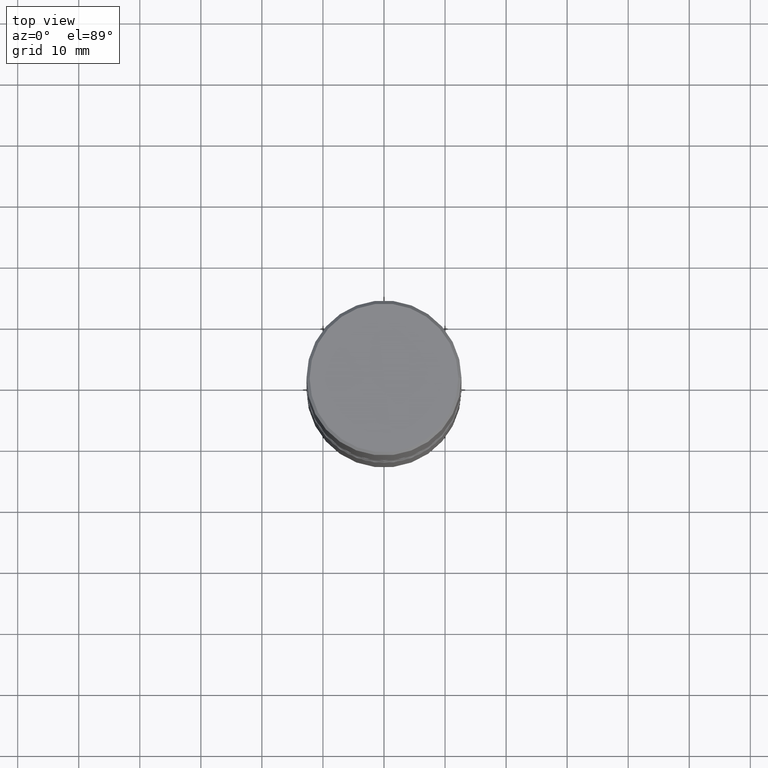
[diagram: clean part render]
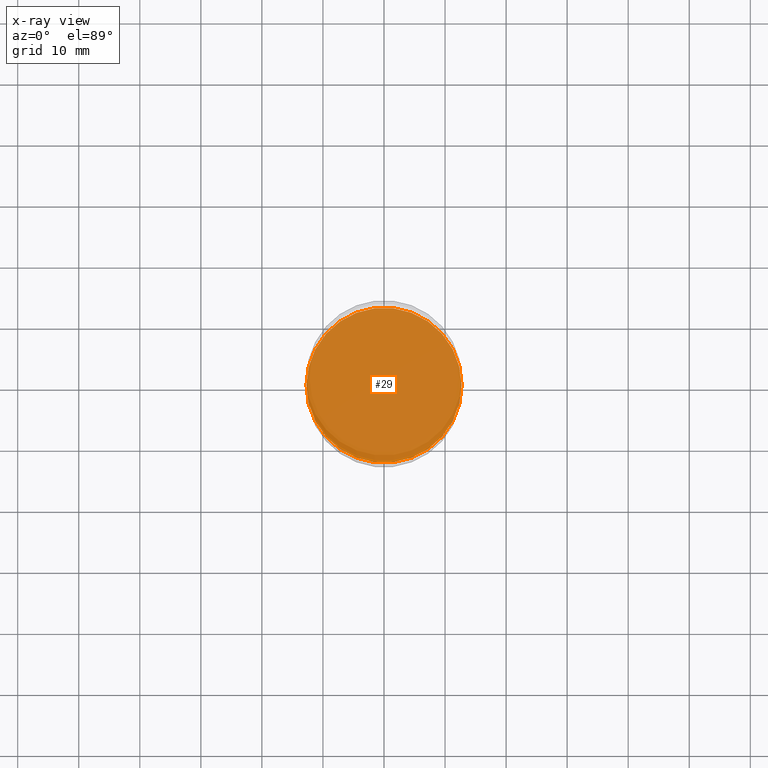
[diagram: x-ray — body ghosted, one internal face saturated and labeled with its STEP entity id]
A machine part, top view, then the same camera in x-ray: the body is ghosted and one INTERNAL B-rep face — a face not visible from any outside direction — is saturated and labeled: STEP entity #29.
In plain terms, the highlighted planar face has unit normal (0, -0, -1).
Its self-contained STEP definition (entity closure, byte-faithful):
#5 = EDGE_LOOP ( 'NONE', ( #207, #117 ) ) ;
#8 = FACE_OUTER_BOUND ( 'NONE', #5, .T. ) ;
#29 = ADVANCED_FACE ( 'NONE', ( #8 ), #177, .F. ) ;
#51 = VERTEX_POINT ( 'NONE', #183 ) ;
#107 = AXIS2_PLACEMENT_3D ( 'NONE', #350, #527, #361 ) ;
#117 = ORIENTED_EDGE ( 'NONE', *, *, #515, .T. ) ;
#147 = CARTESIAN_POINT ( 'NONE',  ( 6.725039217009125641E-29, -9.601573681818653015E-15, -2.750000000000000444 ) ) ;
#172 = DIRECTION ( 'NONE',  ( 1.000000000000000000, -6.982962677686268288E-15, 0.000000000000000000 ) ) ;
#177 = PLANE ( 'NONE',  #107 ) ;
#183 = CARTESIAN_POINT ( 'NONE',  ( -0.5000000000000004441, -9.051533954423253397E-15, -2.750000000000000444 ) ) ;
#207 = ORIENTED_EDGE ( 'NONE', *, *, #268, .T. ) ;
#214 = CARTESIAN_POINT ( 'NONE',  ( 0.5000000000000004441, -1.309305502066178953E-14, -2.750000000000000444 ) ) ;
#268 = EDGE_CURVE ( 'NONE', #304, #51, #483, .T. ) ;
#277 = DIRECTION ( 'NONE',  ( 1.000000000000000000, -6.982962677686268288E-15, 0.000000000000000000 ) ) ;
#304 = VERTEX_POINT ( 'NONE', #214 ) ;
#328 = CARTESIAN_POINT ( 'NONE',  ( 6.725039217009125641E-29, -9.601573681818653015E-15, -2.750000000000000444 ) ) ;
#350 = CARTESIAN_POINT ( 'NONE',  ( 6.725039217009125641E-29, -9.601573681818653015E-15, -2.750000000000000444 ) ) ;
#361 = DIRECTION ( 'NONE',  ( -1.000000000000000000, 6.982962677686265922E-15, -4.876176775795935793E-29 ) ) ;
#375 = AXIS2_PLACEMENT_3D ( 'NONE', #147, #452, #277 ) ;
#385 = AXIS2_PLACEMENT_3D ( 'NONE', #328, #505, #172 ) ;
#448 = CIRCLE ( 'NONE', #375, 0.5000000000000004441 ) ;
#452 = DIRECTION ( 'NONE',  ( -2.445468806185136597E-29, 3.491481338843145583E-15, 1.000000000000000000 ) ) ;
#483 = CIRCLE ( 'NONE', #385, 0.5000000000000004441 ) ;
#505 = DIRECTION ( 'NONE',  ( -2.445468806185136597E-29, 3.491481338843145583E-15, 1.000000000000000000 ) ) ;
#515 = EDGE_CURVE ( 'NONE', #51, #304, #448, .T. ) ;
#527 = DIRECTION ( 'NONE',  ( 2.438088387897960049E-29, -3.491481338843145188E-15, -1.000000000000000000 ) ) ;